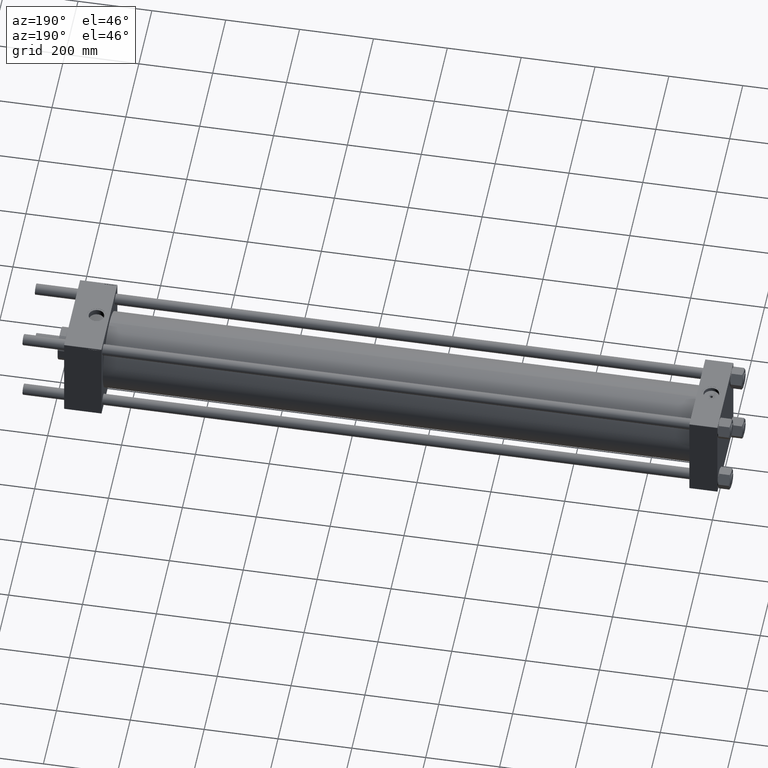
[diagram: clean part render]
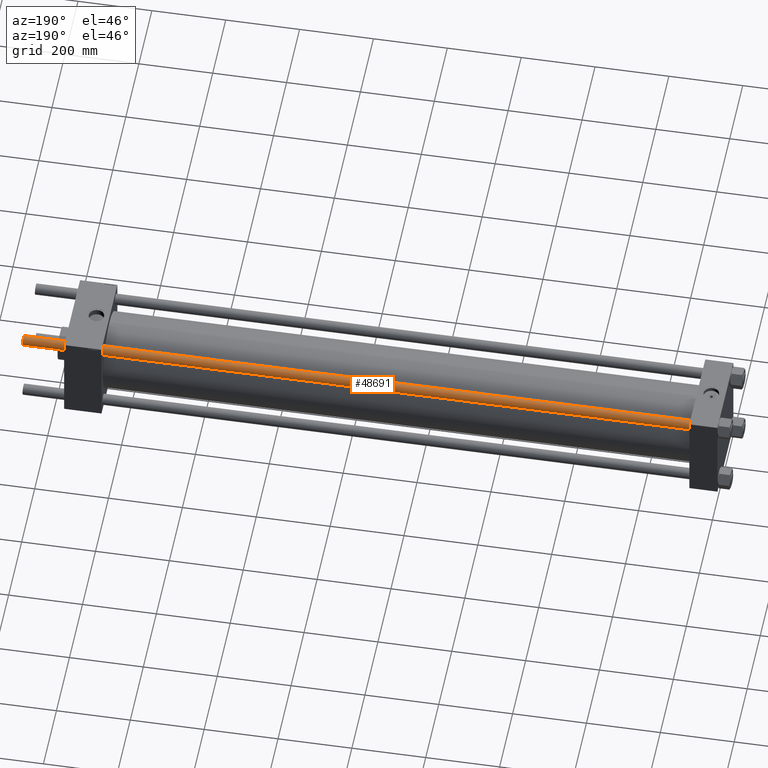
[diagram: same view with one face highlighted and labeled with its STEP entity id]
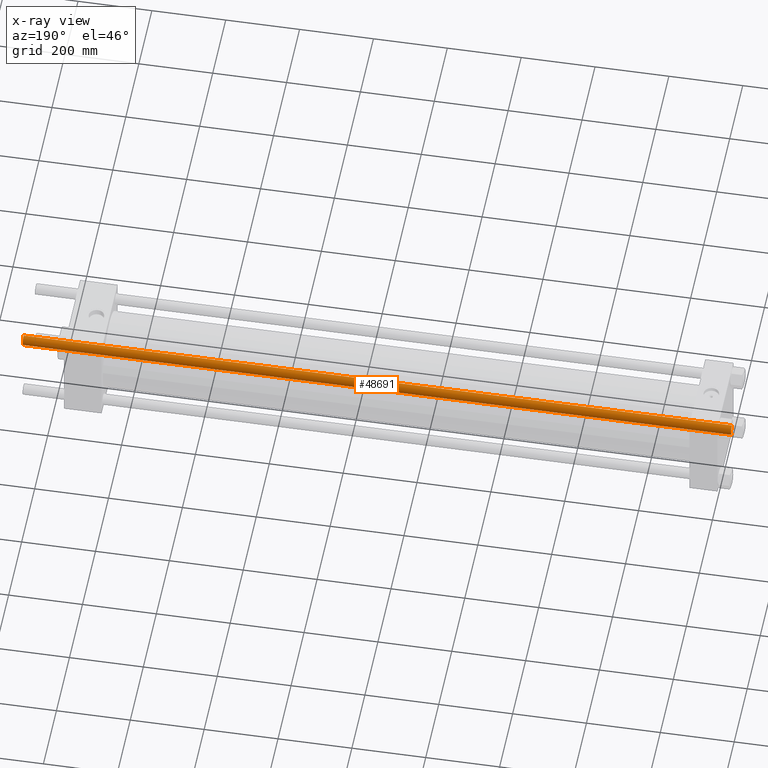
[diagram: x-ray of the same camera — body ghosted, the highlighted face saturated]
A machine part, auxiliary view. The second image highlights one B-rep face of the part: STEP entity #48691.
The next image is the same camera in x-ray: the body ghosted, the highlighted face saturated — about 0% of this face is hidden behind the body in this view.
In plain terms, the highlighted cylindrical surface (edge-blend (fillet) strip) has radius 15 mm, axis along (1, -0, -0).
Its self-contained STEP definition (entity closure, byte-faithful):
#862 = VERTEX_POINT ( 'NONE', #24956 ) ;
#1441 = LINE ( 'NONE', #27495, #53885 ) ;
#2223 = AXIS2_PLACEMENT_3D ( 'NONE', #56442, #8413, #56161 ) ;
#3074 = CARTESIAN_POINT ( 'NONE',  ( -15.00000000000000000, 0.000000000000000000, 1918.499999999999545 ) ) ;
#6297 = AXIS2_PLACEMENT_3D ( 'NONE', #12163, #16503, #34179 ) ;
#7287 = DIRECTION ( 'NONE',  ( -0.000000000000000000, -0.000000000000000000, -1.000000000000000000 ) ) ;
#7888 = VECTOR ( 'NONE', #7287, 1000.000000000000000 ) ;
#8413 = DIRECTION ( 'NONE',  ( -0.000000000000000000, -0.000000000000000000, 1.000000000000000000 ) ) ;
#11607 = CYLINDRICAL_SURFACE ( 'NONE', #6297, 15.00000000000000000 ) ;
#12163 = CARTESIAN_POINT ( 'NONE',  ( 0.000000000000000000, 0.000000000000000000, 1919.000000000000000 ) ) ;
#15609 = ORIENTED_EDGE ( 'NONE', *, *, #42748, .T. ) ;
#15942 = CARTESIAN_POINT ( 'NONE',  ( 15.00000000000000000, 1.836970198721029589E-15, 1919.000000000000000 ) ) ;
#16503 = DIRECTION ( 'NONE',  ( -0.000000000000000000, -0.000000000000000000, -1.000000000000000000 ) ) ;
#16674 = VERTEX_POINT ( 'NONE', #3074 ) ;
#18567 = VERTEX_POINT ( 'NONE', #56611 ) ;
#24006 = DIRECTION ( 'NONE',  ( 0.000000000000000000, 0.000000000000000000, -1.000000000000000000 ) ) ;
#24956 = CARTESIAN_POINT ( 'NONE',  ( -15.00000000000000000, 0.000000000000000000, 0.5000000000001669775 ) ) ;
#26897 = EDGE_LOOP ( 'NONE', ( #15609, #48752, #57071, #34915 ) ) ;
#27495 = CARTESIAN_POINT ( 'NONE',  ( -15.00000000000000000, 0.000000000000000000, 1919.000000000000000 ) ) ;
#28078 = DIRECTION ( 'NONE',  ( 1.000000000000000000, 0.000000000000000000, 0.000000000000000000 ) ) ;
#28119 = EDGE_CURVE ( 'NONE', #18567, #862, #53027, .T. ) ;
#28363 = CARTESIAN_POINT ( 'NONE',  ( 0.000000000000000000, 0.000000000000000000, 1918.499999999999545 ) ) ;
#33061 = EDGE_CURVE ( 'NONE', #16674, #862, #1441, .T. ) ;
#34179 = DIRECTION ( 'NONE',  ( -1.000000000000000000, 0.000000000000000000, 0.000000000000000000 ) ) ;
#34915 = ORIENTED_EDGE ( 'NONE', *, *, #33061, .F. ) ;
#36289 = VERTEX_POINT ( 'NONE', #49323 ) ;
#39358 = AXIS2_PLACEMENT_3D ( 'NONE', #28363, #24006, #28078 ) ;
#41901 = EDGE_CURVE ( 'NONE', #36289, #18567, #51823, .T. ) ;
#42748 = EDGE_CURVE ( 'NONE', #16674, #36289, #45866, .T. ) ;
#45715 = DIRECTION ( 'NONE',  ( -0.000000000000000000, -0.000000000000000000, -1.000000000000000000 ) ) ;
#45866 = CIRCLE ( 'NONE', #39358, 15.00000000000000000 ) ;
#48691 = ADVANCED_FACE ( 'NONE', ( #56162 ), #11607, .T. ) ;
#48752 = ORIENTED_EDGE ( 'NONE', *, *, #41901, .T. ) ;
#49323 = CARTESIAN_POINT ( 'NONE',  ( 15.00000000000000000, 1.836970198721029589E-15, 1918.499999999999545 ) ) ;
#51823 = LINE ( 'NONE', #15942, #7888 ) ;
#53027 = CIRCLE ( 'NONE', #2223, 15.00000000000000000 ) ;
#53885 = VECTOR ( 'NONE', #45715, 1000.000000000000000 ) ;
#56161 = DIRECTION ( 'NONE',  ( 1.000000000000000000, 0.000000000000000000, 0.000000000000000000 ) ) ;
#56162 = FACE_OUTER_BOUND ( 'NONE', #26897, .T. ) ;
#56442 = CARTESIAN_POINT ( 'NONE',  ( 0.000000000000000000, 0.000000000000000000, 0.5000000000001669775 ) ) ;
#56611 = CARTESIAN_POINT ( 'NONE',  ( 15.00000000000000000, 1.836970198721029589E-15, 0.5000000000001669775 ) ) ;
#57071 = ORIENTED_EDGE ( 'NONE', *, *, #28119, .T. ) ;